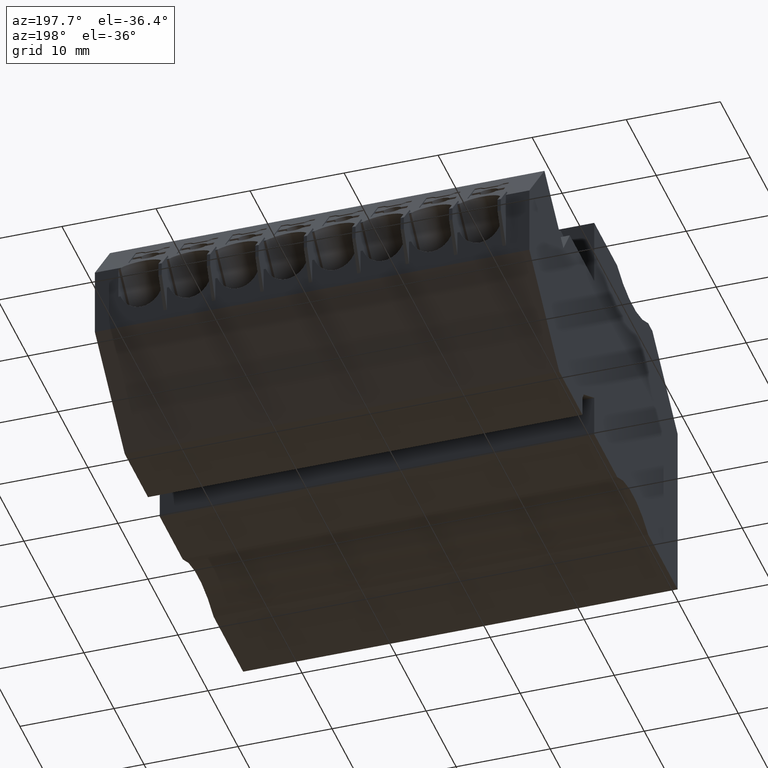
[diagram: clean part render]
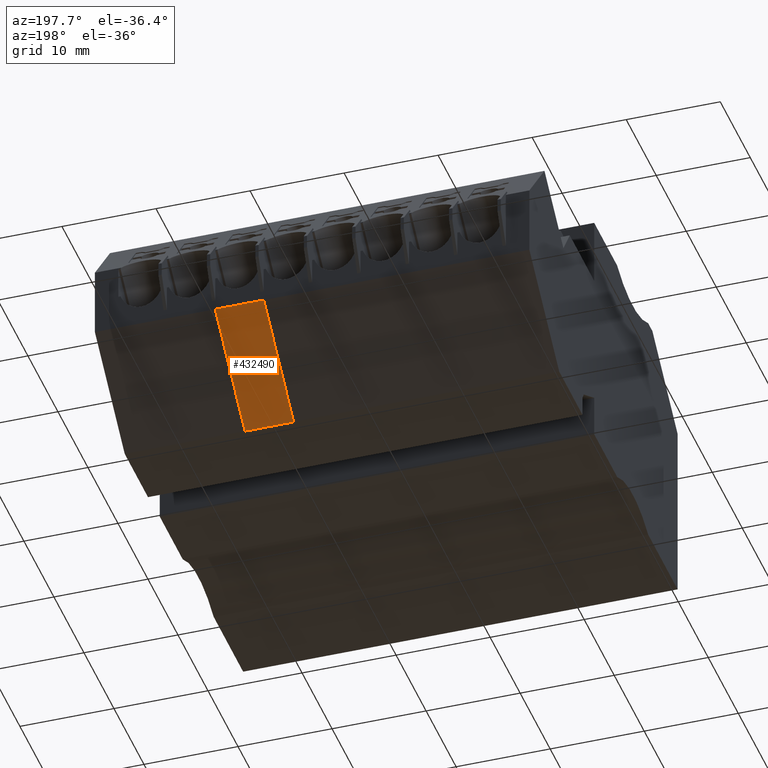
[diagram: same view with one face highlighted and labeled with its STEP entity id]
A machine part, auxiliary view. The second image highlights one B-rep face of the part: STEP entity #432490.
In plain terms, the highlighted planar face has unit normal (0, -0.6428, 0.766).
Its self-contained STEP definition (entity closure, byte-faithful):
#24790=CARTESIAN_POINT('',(469.853158765259,678.981362835314,
68.1199999778021));
#24800=DIRECTION('',(9.53020393934754E-11,4.27434416588531E-10,1.));
#24810=VECTOR('',#24800,1.);
#24820=LINE('',#24790,#24810);
#27120=CARTESIAN_POINT('',(469.853158766227,678.981362837916,
73.2699999858219));
#27130=DIRECTION('',(-0.642787608616664,0.766044444016711,
-2.66174790011145E-10));
#27140=DIRECTION('',(0.766044444016711,0.642787608616664,
-7.65167882315017E-10));
#27150=AXIS2_PLACEMENT_3D('',#27120,#27130,#27140);
#27160=PLANE('',#27150);
#123290=CARTESIAN_POINT('',(459.905573335206,670.634347604264,
99.0199999974377));
#123300=VERTEX_POINT('',#123290);
#123330=CARTESIAN_POINT('',(459.90557333048,670.634347600316,
99.0199999745712));
#123340=DIRECTION('',(-3.51177059947896E-10,-5.0369111157255E-10,-1.));
#123350=VECTOR('',#123340,1.);
#123360=LINE('',#123330,#123350);
#123370=CARTESIAN_POINT('',(459.905573332292,670.634347601313,
96.5199999818239));
#123380=VERTEX_POINT('',#123370);
#123390=EDGE_CURVE('',#123300,#123380,#123360,.T.);
#123410=CARTESIAN_POINT('',(459.905573337582,670.634347599839,
93.8700000009573));
#123420=DIRECTION('',(2.48917491584714E-10,5.5633326625038E-10,1.));
#123430=VECTOR('',#123420,1.);
#123440=LINE('',#123410,#123430);
#123450=CARTESIAN_POINT('',(459.905573337582,670.634347607166,
93.8699999973205));
#123460=VERTEX_POINT('',#123450);
#123470=EDGE_CURVE('',#123460,#123380,#123440,.T.);
#275760=CARTESIAN_POINT('',(469.853158767713,678.98136284632,
93.8699999916465));
#275770=VERTEX_POINT('',#275760);
#275780=CARTESIAN_POINT('',(469.853158768204,678.981362848521,
99.0199999917636));
#275790=VERTEX_POINT('',#275780);
#275800=EDGE_CURVE('',#275770,#275790,#24820,.T.);
#398060=CARTESIAN_POINT('',(447.053267549297,659.849982588328,
93.8700000046515));
#398070=DIRECTION('',(-0.766044444016711,-0.642787608616664,
4.36950297394486E-10));
#398080=VECTOR('',#398070,1.);
#398090=LINE('',#398060,#398080);
#398100=EDGE_CURVE('',#275770,#123460,#398090,.T.);
#432370=ORIENTED_EDGE('',*,*,#275800,.T.);
#432380=ORIENTED_EDGE('',*,*,#398100,.F.);
#432390=ORIENTED_EDGE('',*,*,#123470,.F.);
#432400=ORIENTED_EDGE('',*,*,#123390,.T.);
#432410=CARTESIAN_POINT('',(447.053267549557,659.849982590336,
99.0200000047686));
#432420=DIRECTION('',(0.766044444016711,0.642787608616664,
-4.36950297394486E-10));
#432430=VECTOR('',#432420,1.);
#432440=LINE('',#432410,#432430);
#432450=EDGE_CURVE('',#123300,#275790,#432440,.T.);
#432460=ORIENTED_EDGE('',*,*,#432450,.F.);
#432470=EDGE_LOOP('',(#432460,#432400,#432390,#432380,#432370));
#432480=FACE_OUTER_BOUND('',#432470,.T.);
#432490=ADVANCED_FACE('',(#432480),#27160,.F.);